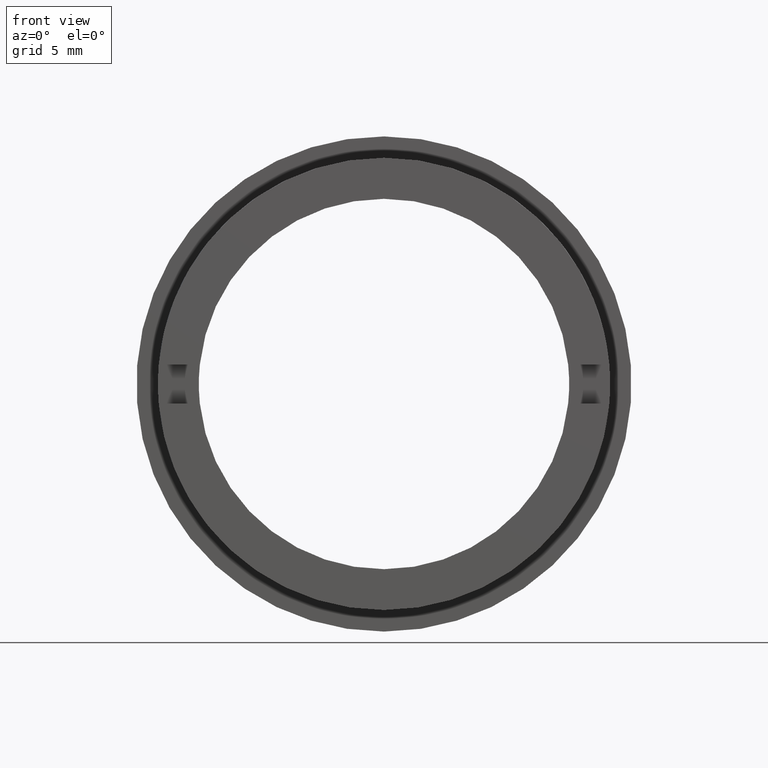
[diagram: clean part render]
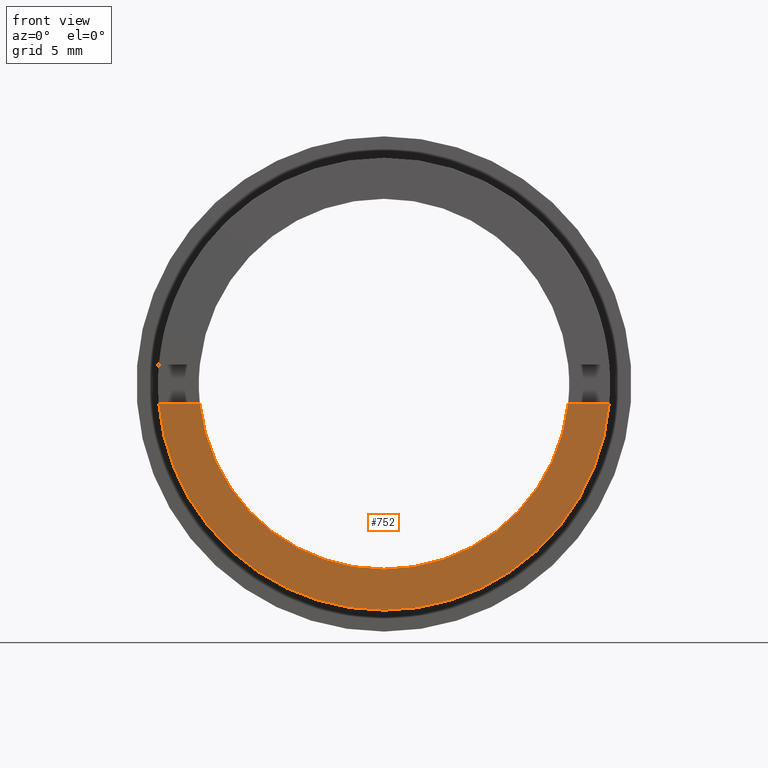
[diagram: same view with one face highlighted and labeled with its STEP entity id]
A machine part, front view. The second image highlights one B-rep face of the part: STEP entity #752.
In plain terms, the highlighted planar face has unit normal (0, -1, 0).
Its self-contained STEP definition (entity closure, byte-faithful):
#6 = ORIENTED_EDGE ( 'NONE', *, *, #715, .T. ) ;
#11 = EDGE_CURVE ( 'NONE', #736, #358, #1090, .T. ) ;
#18 = ORIENTED_EDGE ( 'NONE', *, *, #833, .T. ) ;
#60 = PLANE ( 'NONE',  #1050 ) ;
#62 = FACE_OUTER_BOUND ( 'NONE', #323, .T. ) ;
#65 = VERTEX_POINT ( 'NONE', #304 ) ;
#69 = DIRECTION ( 'NONE',  ( -0.0000000000000000000, 1.000000000000000000, -0.0000000000000000000 ) ) ;
#100 = EDGE_CURVE ( 'NONE', #65, #736, #104, .T. ) ;
#104 = CIRCLE ( 'NONE', #180, 11.59999999999999800 ) ;
#152 = DIRECTION ( 'NONE',  ( 0.0000000000000000000, 0.0000000000000000000, 1.000000000000000000 ) ) ;
#163 = DIRECTION ( 'NONE',  ( 1.000000000000000000, 0.0000000000000000000, 0.0000000000000000000 ) ) ;
#180 = AXIS2_PLACEMENT_3D ( 'NONE', #335, #252, #957 ) ;
#189 = AXIS2_PLACEMENT_3D ( 'NONE', #291, #860, #331 ) ;
#204 = CIRCLE ( 'NONE', #189, 9.499999999999996400 ) ;
#222 = LINE ( 'NONE', #432, #644 ) ;
#232 = CARTESIAN_POINT ( 'NONE',  ( 11.55681617055493000, 0.0000000000000000000, -1.000000000000000000 ) ) ;
#242 = CARTESIAN_POINT ( 'NONE',  ( 0.0000000000000000000, 0.0000000000000000000, 0.0000000000000000000 ) ) ;
#252 = DIRECTION ( 'NONE',  ( -0.0000000000000000000, 1.000000000000000000, -0.0000000000000000000 ) ) ;
#291 = CARTESIAN_POINT ( 'NONE',  ( 0.0000000000000000000, 0.0000000000000000000, 0.0000000000000000000 ) ) ;
#304 = CARTESIAN_POINT ( 'NONE',  ( 1.420590287010929300E-015, 0.0000000000000000000, -11.59999999999999800 ) ) ;
#323 = EDGE_LOOP ( 'NONE', ( #832, #1144, #1083, #672, #6, #18 ) ) ;
#331 = DIRECTION ( 'NONE',  ( 0.0000000000000000000, 0.0000000000000000000, 1.000000000000000000 ) ) ;
#335 = CARTESIAN_POINT ( 'NONE',  ( 0.0000000000000000000, 0.0000000000000000000, 0.0000000000000000000 ) ) ;
#358 = VERTEX_POINT ( 'NONE', #481 ) ;
#425 = CARTESIAN_POINT ( 'NONE',  ( -11.59999999999999800, 0.0000000000000000000, -1.000000000000000000 ) ) ;
#432 = CARTESIAN_POINT ( 'NONE',  ( -11.59999999999999800, 0.0000000000000000000, -1.000000000000000000 ) ) ;
#481 = CARTESIAN_POINT ( 'NONE',  ( -9.447221813845589000, 0.0000000000000000000, -1.000000000000000000 ) ) ;
#511 = VERTEX_POINT ( 'NONE', #901 ) ;
#596 = DIRECTION ( 'NONE',  ( 0.0000000000000000000, -1.000000000000000000, 0.0000000000000000000 ) ) ;
#602 = DIRECTION ( 'NONE',  ( 0.0000000000000000000, 0.0000000000000000000, 1.000000000000000000 ) ) ;
#644 = VECTOR ( 'NONE', #163, 1000.000000000000000 ) ;
#672 = ORIENTED_EDGE ( 'NONE', *, *, #935, .F. ) ;
#689 = CARTESIAN_POINT ( 'NONE',  ( 0.0000000000000000000, 0.0000000000000000000, 0.0000000000000000000 ) ) ;
#715 = EDGE_CURVE ( 'NONE', #511, #951, #1032, .T. ) ;
#736 = VERTEX_POINT ( 'NONE', #1118 ) ;
#752 = ADVANCED_FACE ( 'NONE', ( #62 ), #60, .T. ) ;
#760 = AXIS2_PLACEMENT_3D ( 'NONE', #242, #788, #152 ) ;
#788 = DIRECTION ( 'NONE',  ( -0.0000000000000000000, 1.000000000000000000, -0.0000000000000000000 ) ) ;
#832 = ORIENTED_EDGE ( 'NONE', *, *, #11, .F. ) ;
#833 = EDGE_CURVE ( 'NONE', #951, #358, #204, .T. ) ;
#848 = CARTESIAN_POINT ( 'NONE',  ( 1.163414459189985100E-015, 0.0000000000000000000, -9.499999999999996400 ) ) ;
#860 = DIRECTION ( 'NONE',  ( -0.0000000000000000000, 1.000000000000000000, -0.0000000000000000000 ) ) ;
#865 = VECTOR ( 'NONE', #953, 1000.000000000000000 ) ;
#901 = CARTESIAN_POINT ( 'NONE',  ( 9.447221813845589000, 0.0000000000000000000, -1.000000000000000000 ) ) ;
#935 = EDGE_CURVE ( 'NONE', #511, #1059, #222, .T. ) ;
#938 = CARTESIAN_POINT ( 'NONE',  ( -11.59999999999999800, 0.0000000000000000000, 0.0000000000000000000 ) ) ;
#951 = VERTEX_POINT ( 'NONE', #848 ) ;
#953 = DIRECTION ( 'NONE',  ( 1.000000000000000000, 0.0000000000000000000, 0.0000000000000000000 ) ) ;
#957 = DIRECTION ( 'NONE',  ( 0.0000000000000000000, 0.0000000000000000000, 1.000000000000000000 ) ) ;
#966 = EDGE_CURVE ( 'NONE', #1059, #65, #1076, .T. ) ;
#1032 = CIRCLE ( 'NONE', #760, 9.499999999999996400 ) ;
#1050 = AXIS2_PLACEMENT_3D ( 'NONE', #938, #596, #1115 ) ;
#1059 = VERTEX_POINT ( 'NONE', #232 ) ;
#1076 = CIRCLE ( 'NONE', #1145, 11.59999999999999800 ) ;
#1083 = ORIENTED_EDGE ( 'NONE', *, *, #966, .F. ) ;
#1090 = LINE ( 'NONE', #425, #865 ) ;
#1115 = DIRECTION ( 'NONE',  ( 0.0000000000000000000, -0.0000000000000000000, -1.000000000000000000 ) ) ;
#1118 = CARTESIAN_POINT ( 'NONE',  ( -11.55681617055493000, 0.0000000000000000000, -1.000000000000000000 ) ) ;
#1144 = ORIENTED_EDGE ( 'NONE', *, *, #100, .F. ) ;
#1145 = AXIS2_PLACEMENT_3D ( 'NONE', #689, #69, #602 ) ;